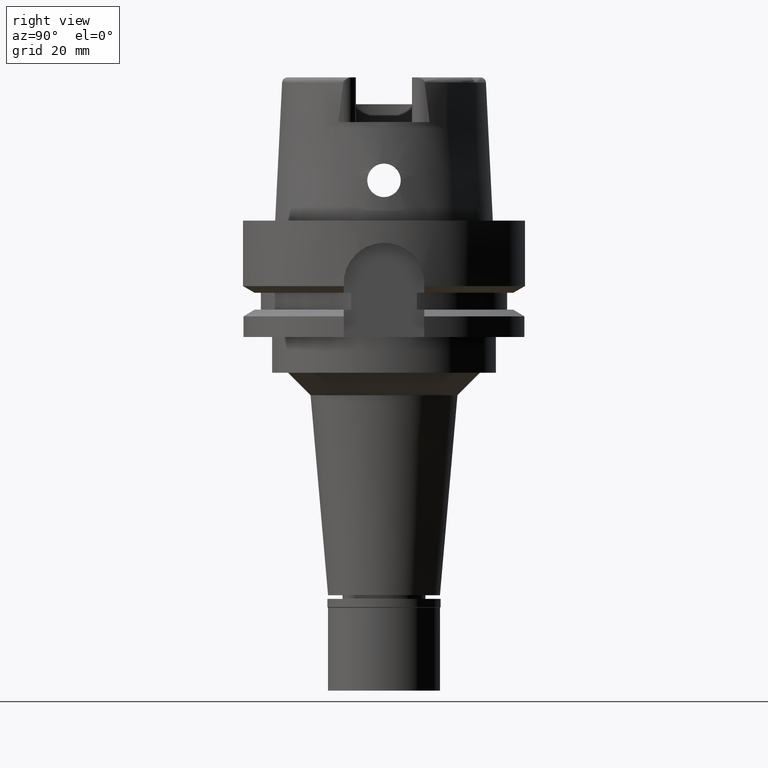
[diagram: clean part render]
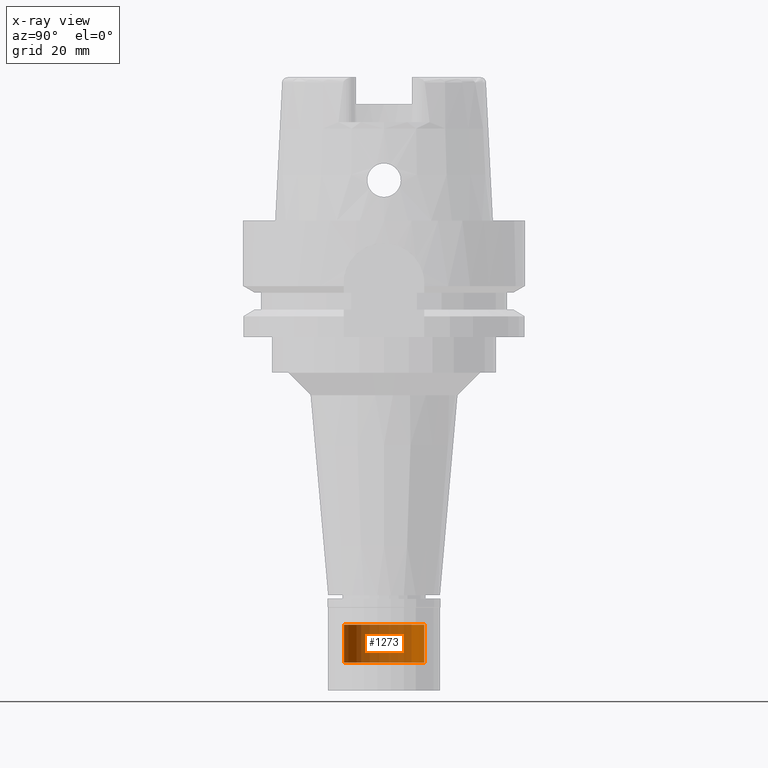
[diagram: x-ray — body ghosted, one internal face saturated and labeled with its STEP entity id]
A machine part, right view, then the same camera in x-ray: the body is ghosted and one INTERNAL B-rep face — a face not visible from any outside direction — is saturated and labeled: STEP entity #1273.
In plain terms, the highlighted cylindrical surface (partial cylindrical patch) has radius 9 mm, axis along (0, 0, 1).
Its self-contained STEP definition (entity closure, byte-faithful):
#21 = VERTEX_POINT ( 'NONE', #4208 ) ;
#113 = AXIS2_PLACEMENT_3D ( 'NONE', #1118, #4485, #4104 ) ;
#333 = CARTESIAN_POINT ( 'NONE',  ( 0.0000000000000000000, -8.999999999998999911, -98.79999999999999716 ) ) ;
#344 = CIRCLE ( 'NONE', #2124, 8.999999999998999911 ) ;
#449 = ORIENTED_EDGE ( 'NONE', *, *, #3358, .F. ) ;
#462 = AXIS2_PLACEMENT_3D ( 'NONE', #4425, #1112, #5290 ) ;
#553 = LINE ( 'NONE', #4869, #4340 ) ;
#959 = EDGE_CURVE ( 'NONE', #2969, #1892, #5331, .T. ) ;
#1038 = DIRECTION ( 'NONE',  ( 0.0000000000000000000, 0.0000000000000000000, -1.000000000000000000 ) ) ;
#1112 = DIRECTION ( 'NONE',  ( 0.0000000000000000000, 0.0000000000000000000, 1.000000000000000000 ) ) ;
#1118 = CARTESIAN_POINT ( 'NONE',  ( 0.0000000000000000000, 0.0000000000000000000, 0.0000000000000000000 ) ) ;
#1153 = DIRECTION ( 'NONE',  ( 0.0000000000000000000, 0.0000000000000000000, -1.000000000000000000 ) ) ;
#1273 = ADVANCED_FACE ( 'NONE', ( #3626 ), #3214, .T. ) ;
#1892 = VERTEX_POINT ( 'NONE', #333 ) ;
#2124 = AXIS2_PLACEMENT_3D ( 'NONE', #3941, #1038, #3991 ) ;
#2128 = CARTESIAN_POINT ( 'NONE',  ( 0.0000000000000000000, 8.999999999998999911, -90.30000000000001137 ) ) ;
#2465 = EDGE_LOOP ( 'NONE', ( #4040, #449, #4502, #2778 ) ) ;
#2778 = ORIENTED_EDGE ( 'NONE', *, *, #4772, .T. ) ;
#2936 = VERTEX_POINT ( 'NONE', #2128 ) ;
#2969 = VERTEX_POINT ( 'NONE', #4775 ) ;
#3183 = EDGE_CURVE ( 'NONE', #21, #2936, #344, .T. ) ;
#3214 = CYLINDRICAL_SURFACE ( 'NONE', #113, 8.999999999998999911 ) ;
#3255 = CARTESIAN_POINT ( 'NONE',  ( 0.0000000000000000000, 8.999999999998999911, -90.30000000000001137 ) ) ;
#3358 = EDGE_CURVE ( 'NONE', #21, #1892, #553, .T. ) ;
#3626 = FACE_OUTER_BOUND ( 'NONE', #2465, .T. ) ;
#3717 = VECTOR ( 'NONE', #4876, 1000.000000000000000 ) ;
#3941 = CARTESIAN_POINT ( 'NONE',  ( 0.0000000000000000000, 0.0000000000000000000, -90.30000000000001137 ) ) ;
#3991 = DIRECTION ( 'NONE',  ( 0.0000000000000000000, -1.000000000000000000, 0.0000000000000000000 ) ) ;
#4040 = ORIENTED_EDGE ( 'NONE', *, *, #959, .T. ) ;
#4104 = DIRECTION ( 'NONE',  ( 0.0000000000000000000, 1.000000000000000000, 0.0000000000000000000 ) ) ;
#4208 = CARTESIAN_POINT ( 'NONE',  ( 0.0000000000000000000, -8.999999999998999911, -90.30000000000001137 ) ) ;
#4340 = VECTOR ( 'NONE', #1153, 1000.000000000000000 ) ;
#4425 = CARTESIAN_POINT ( 'NONE',  ( 0.0000000000000000000, 0.0000000000000000000, -98.79999999999999716 ) ) ;
#4485 = DIRECTION ( 'NONE',  ( 0.0000000000000000000, 0.0000000000000000000, 1.000000000000000000 ) ) ;
#4502 = ORIENTED_EDGE ( 'NONE', *, *, #3183, .T. ) ;
#4772 = EDGE_CURVE ( 'NONE', #2936, #2969, #4829, .T. ) ;
#4775 = CARTESIAN_POINT ( 'NONE',  ( 0.0000000000000000000, 8.999999999998999911, -98.79999999999999716 ) ) ;
#4829 = LINE ( 'NONE', #3255, #3717 ) ;
#4869 = CARTESIAN_POINT ( 'NONE',  ( 0.0000000000000000000, -8.999999999998999911, -90.30000000000001137 ) ) ;
#4876 = DIRECTION ( 'NONE',  ( 0.0000000000000000000, 0.0000000000000000000, -1.000000000000000000 ) ) ;
#5290 = DIRECTION ( 'NONE',  ( 0.0000000000000000000, 1.000000000000000000, 0.0000000000000000000 ) ) ;
#5331 = CIRCLE ( 'NONE', #462, 8.999999999998999911 ) ;